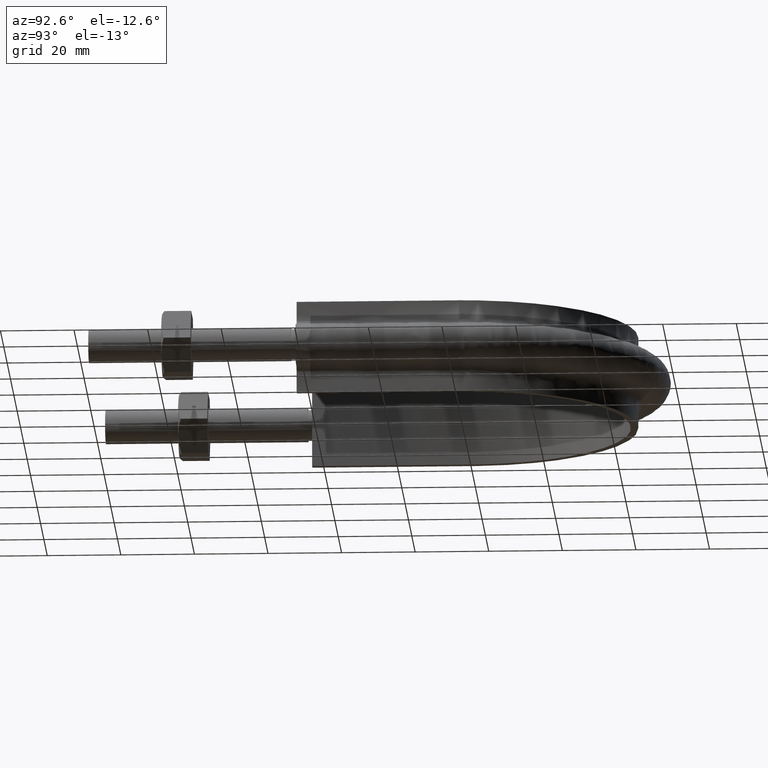
[diagram: clean part render]
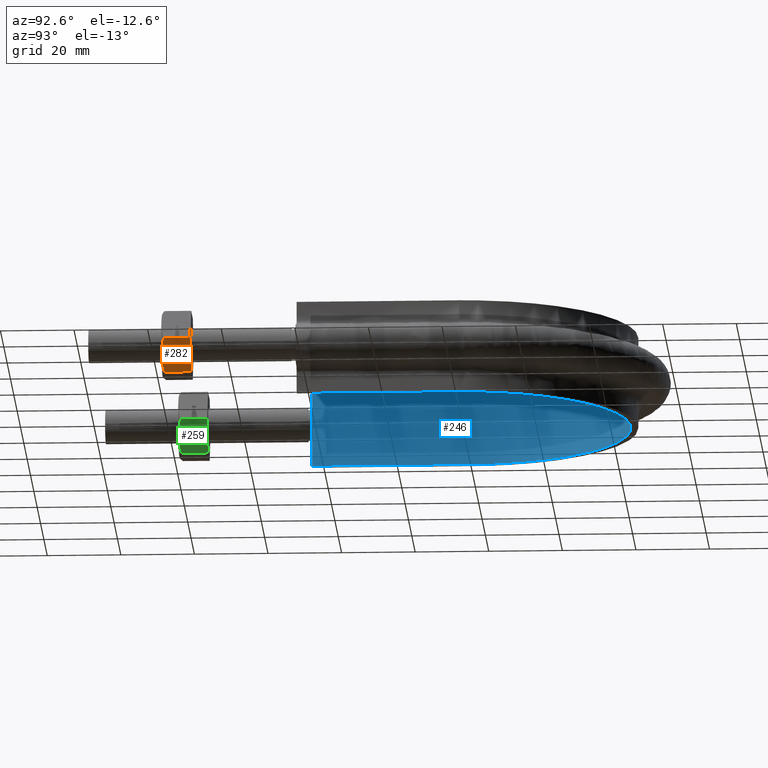
[diagram: same view with three faces highlighted in distinct colors, each labeled with its STEP entity id]
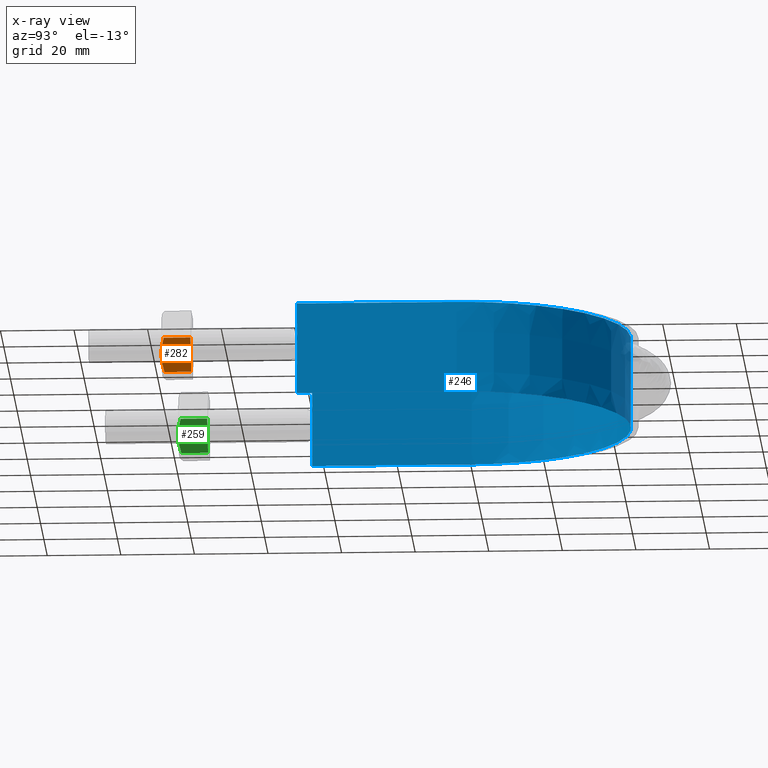
[diagram: x-ray of the same camera — body ghosted, the three highlighted faces saturated]
A machine part, auxiliary view with three faces highlighted in distinct colors.
The next image is the same camera in x-ray (body ghosted, the three faces saturated) — at least one of them is partly hidden behind the body in this view.
Their STEP definitions:

[orange] entity #282 — the highlighted planar face has unit normal (-0.866, 0, 0.5).
#282 = ADVANCED_FACE( '', ( #439 ), #440, .F. );
#439 = FACE_OUTER_BOUND( '', #1425, .T. );
#440 = PLANE( '', #1426 );
#1425 = EDGE_LOOP( '', ( #1896, #1897, #1898, #1899, #1900 ) );
#1426 = AXIS2_PLACEMENT_3D( '', #1901, #1902, #1903 );
#1896 = ORIENTED_EDGE( '', *, *, #2094, .F. );
#1897 = ORIENTED_EDGE( '', *, *, #2125, .F. );
#1898 = ORIENTED_EDGE( '', *, *, #2130, .F. );
#1899 = ORIENTED_EDGE( '', *, *, #2114, .F. );
#1900 = ORIENTED_EDGE( '', *, *, #2131, .F. );
#1901 = CARTESIAN_POINT( '', ( 60.3149545762237, 28.0000000000000, 2.44921270764476E-016 ) );
#1902 = DIRECTION( '', ( -0.866025403784439, 1.81492883563643E-016, 0.500000000000000 ) );
#1903 = DIRECTION( '', ( 2.09569930362941E-016, 1.00000000000000, -1.23259516440783E-032 ) );
#2094 = EDGE_CURVE( '', #2312, #2308, #2314, .T. );
#2114 = EDGE_CURVE( '', #2350, #2352, #2353, .T. );
#2125 = EDGE_CURVE( '', #2367, #2312, #2369, .T. );
#2130 = EDGE_CURVE( '', #2352, #2367, #2378, .T. );
#2131 = EDGE_CURVE( '', #2308, #2350, #2379, .F. );
#2308 = VERTEX_POINT( '', #2890 );
#2312 = VERTEX_POINT( '', #2899 );
#2314 = B_SPLINE_CURVE_WITH_KNOTS( '', 3, ( #2901, #2902, #2903, #2904, #2905, #2906 ), .UNSPECIFIED., .F., .F., ( 4, 2, 4 ), ( 1.51478215358021E-017, 0.00246745482903602, 0.00493490965807203 ), .UNSPECIFIED. );
#2350 = VERTEX_POINT( '', #2964 );
#2352 = VERTEX_POINT( '', #2966 );
#2353 = LINE( '', #2967, #2968 );
#2367 = VERTEX_POINT( '', #2987 );
#2369 = B_SPLINE_CURVE_WITH_KNOTS( '', 3, ( #2989, #2990, #2991, #2992, #2993, #2994 ), .UNSPECIFIED., .F., .F., ( 4, 2, 4 ), ( 4.25272687625380E-017, 0.00246745482903608, 0.00493490965807212 ), .UNSPECIFIED. );
#2378 = LINE( '', #3013, #3014 );
#2379 = LINE( '', #3015, #3016 );
#2890 = CARTESIAN_POINT( '', ( 60.2999656118192, 20.7505553499465, -0.0259616479014452 ) );
#2899 = CARTESIAN_POINT( '', ( 57.8612159321678, 20.0000000000000, -4.24999999999999 ) );
#2901 = CARTESIAN_POINT( '', ( 57.8612159321678, 20.0000000000000, -4.24999999999999 ) );
#2902 = CARTESIAN_POINT( '', ( 58.2772989072631, 20.0000000000000, -3.52932314697043 ) );
#2903 = CARTESIAN_POINT( '', ( 58.6878690560106, 20.0716504305291, -2.81819478926870 ) );
#2904 = CARTESIAN_POINT( '', ( 59.4999375199992, 20.3328582843707, -1.41165095041606 ) );
#2905 = CARTESIAN_POINT( '', ( 59.9015017855064, 20.5215585493657, -0.716121240053489 ) );
#2906 = CARTESIAN_POINT( '', ( 60.2999656118192, 20.7505553499465, -0.0259616479013997 ) );
#2964 = CARTESIAN_POINT( '', ( 60.2999656118192, 28.0000000000000, -0.0259616479014848 ) );
#2966 = CARTESIAN_POINT( '', ( 55.4224662525164, 28.0000000000000, -8.47403835209856 ) );
#2967 = CARTESIAN_POINT( '', ( 60.3112159321678, 28.0000000000000, -0.00647552145627284 ) );
#2968 = VECTOR( '', #3243, 1000.00000000000 );
#2987 = CARTESIAN_POINT( '', ( 55.4224662525164, 20.7505553499465, -8.47403835209859 ) );
#2989 = CARTESIAN_POINT( '', ( 55.4224662525163, 20.7505553499465, -8.47403835209863 ) );
#2990 = CARTESIAN_POINT( '', ( 55.8209300788292, 20.5215585493657, -7.78387875994653 ) );
#2991 = CARTESIAN_POINT( '', ( 56.2224943443364, 20.3328582843707, -7.08834904958396 ) );
#2992 = CARTESIAN_POINT( '', ( 57.0345628083250, 20.0716504305291, -5.68180521073130 ) );
#2993 = CARTESIAN_POINT( '', ( 57.4451329570724, 20.0000000000000, -4.97067685302957 ) );
#2994 = CARTESIAN_POINT( '', ( 57.8612159321678, 20.0000000000000, -4.24999999999999 ) );
#3013 = CARTESIAN_POINT( '', ( 55.4224662525164, 28.0000000000000, -8.47403835209856 ) );
#3014 = VECTOR( '', #3270, 1000.00000000000 );
#3015 = CARTESIAN_POINT( '', ( 60.2999656118192, 28.0000000000000, -0.0259616479014874 ) );
#3016 = VECTOR( '', #3271, 1000.00000000000 );
#3243 = DIRECTION( '', ( -0.500000000000000, 1.75487645984538E-016, -0.866025403784439 ) );
#3270 = DIRECTION( '', ( -2.44921270764475E-016, -1.00000000000000, -6.12303176911189E-017 ) );
#3271 = DIRECTION( '', ( -2.44921270764475E-016, -1.00000000000000, -6.12303176911189E-017 ) );

[blue] entity #246 — the highlighted face is a SurfaceOfExtrusion surface.
#246 = ADVANCED_FACE( '', ( #359 ), #360, .T. );
#359 = FACE_OUTER_BOUND( '', #1185, .T. );
#360 = SURFACE_OF_LINEAR_EXTRUSION( '', #1186, #1187 );
#1185 = EDGE_LOOP( '', ( #1615, #1616, #1617, #1618 ) );
#1186 = B_SPLINE_CURVE_WITH_KNOTS( '', 3, ( #1619, #1620, #1621, #1622, #1623, #1624, #1625, #1626, #1627, #1628, #1629, #1630, #1631, #1632, #1633, #1634 ), .UNSPECIFIED., .F., .F., ( 4, 3, 1, 1, 1, 1, 1, 1, 3, 4 ), ( -8.93133047210300, -8.00000000000000, -7.00000000000000, -6.00000000000000, -5.00000000000000, -4.00000000000000, -3.00000000000000, -2.00000000000000, -1.00000000000000, -0.0686695278969956 ), .UNSPECIFIED. );
#1187 = VECTOR( '', #1635, 1000.00000000000 );
#1615 = ORIENTED_EDGE( '', *, *, #2025, .T. );
#1616 = ORIENTED_EDGE( '', *, *, #2038, .T. );
#1617 = ORIENTED_EDGE( '', *, *, #2033, .F. );
#1618 = ORIENTED_EDGE( '', *, *, #2030, .T. );
#1619 = CARTESIAN_POINT( '', ( 45.3000000000000, 56.3000000000000, 12.5000100000910 ) );
#1620 = CARTESIAN_POINT( '', ( 45.3000000000000, 70.7666666666667, 12.5000100000910 ) );
#1621 = CARTESIAN_POINT( '', ( 45.3000000000000, 85.2333333333333, 12.5000100000910 ) );
#1622 = CARTESIAN_POINT( '', ( 45.3000000000000, 99.7000000000000, 12.5000100000910 ) );
#1623 = CARTESIAN_POINT( '', ( 45.3000000000000, 106.461794206864, 12.5000100000910 ) );
#1624 = CARTESIAN_POINT( '', ( 42.2071641315033, 120.032157601825, 12.5000100000910 ) );
#1625 = CARTESIAN_POINT( '', ( 29.2082638356160, 136.324357375469, 12.5000100000910 ) );
#1626 = CARTESIAN_POINT( '', ( 10.4243086712368, 145.372209831110, 12.5000100000910 ) );
#1627 = CARTESIAN_POINT( '', ( -10.4243086712368, 145.372209831110, 12.5000100000910 ) );
#1628 = CARTESIAN_POINT( '', ( -29.2082638356159, 136.324357375469, 12.5000100000910 ) );
#1629 = CARTESIAN_POINT( '', ( -42.2071641315033, 120.032157601825, 12.5000100000910 ) );
#1630 = CARTESIAN_POINT( '', ( -45.3000000000000, 106.461794206864, 12.5000100000910 ) );
#1631 = CARTESIAN_POINT( '', ( -45.3000000000000, 99.7000000000000, 12.5000100000910 ) );
#1632 = CARTESIAN_POINT( '', ( -45.3000000000000, 85.2333333333333, 12.5000100000910 ) );
#1633 = CARTESIAN_POINT( '', ( -45.3000000000000, 70.7666666666667, 12.5000100000910 ) );
#1634 = CARTESIAN_POINT( '', ( -45.3000000000000, 56.3000000000000, 12.5000100000910 ) );
#1635 = DIRECTION( '', ( 0.000000000000000, 0.000000000000000, -1.00000000000000 ) );
#2025 = EDGE_CURVE( '', #2197, #2198, #2199, .T. );
#2030 = EDGE_CURVE( '', #2207, #2197, #2208, .T. );
#2033 = EDGE_CURVE( '', #2207, #2212, #2213, .T. );
#2038 = EDGE_CURVE( '', #2198, #2212, #2220, .F. );
#2197 = VERTEX_POINT( '', #2489 );
#2198 = VERTEX_POINT( '', #2490 );
#2199 = LINE( '', #2491, #2492 );
#2207 = VERTEX_POINT( '', #2541 );
#2208 = B_SPLINE_CURVE_WITH_KNOTS( '', 3, ( #2542, #2543, #2544, #2545, #2546, #2547, #2548, #2549, #2550, #2551, #2552, #2553, #2554, #2555, #2556, #2557, #2558, #2559, #2560, #2561, #2562, #2563, #2564, #2565, #2566, #2567, #2568, #2569, #2570, #2571, #2572, #2573, #2574, #2575, #2576, #2577, #2578, #2579, #2580, #2581, #2582, #2583, #2584, #2585, #2586, #2587, #2588, #2589, #2590, #2591, #2592, #2593, #2594, #2595, #2596, #2597, #2598, #2599, #2600, #2601, #2602, #2603, #2604, #2605, #2606, #2607, #2608, #2609, #2610, #2611, #2612, #2613, #2614, #2615, #2616, #2617, #2618, #2619, #2620, #2621, #2622, #2623, #2624, #2625 ), .UNSPECIFIED., .F., .F., ( 4, 1, 2, 2, 2, 2, 2, 2, 2, 2, 2, 2, 2, 2, 2, 2, 2, 2, 2, 2, 2, 2, 2, 2, 2, 2, 2, 2, 2, 2, 2, 2, 2, 2, 2, 2, 2, 2, 2, 2, 2, 1, 4 ), ( 6.93889390390723E-018, 0.0287543779946533, 0.0431315669919799, 0.0440301413043129, 0.0449287156166458, 0.0467258642413117, 0.0503201614906435, 0.0575087559893071, 0.0611030532386389, 0.0629002018633049, 0.0646973504879708, 0.0718859449866344, 0.0754802422359662, 0.0790745394852980, 0.0862631339839615, 0.0898574312332932, 0.0916545798579591, 0.0934517284826250, 0.100640322981289, 0.107828917479952, 0.111423214729284, 0.115017511978616, 0.122206106477279, 0.124003255101945, 0.125800403726611, 0.129394700975943, 0.136583295474606, 0.138380444099272, 0.140177592723938, 0.143771889973270, 0.150960484471934, 0.154554781721266, 0.158149078970598, 0.165337673469261, 0.168931970718593, 0.170729119343259, 0.172526267967925, 0.179714862466589, 0.183309159715921, 0.185106308340587, 0.186903456965253, 0.201280645962580, 0.230035023957236 ), .UNSPECIFIED. );
#2212 = VERTEX_POINT( '', #2645 );
#2213 = LINE( '', #2646, #2647 );
#2220 = B_SPLINE_CURVE_WITH_KNOTS( '', 3, ( #2709, #2710, #2711, #2712, #2713, #2714, #2715, #2716, #2717, #2718, #2719, #2720, #2721, #2722, #2723, #2724 ), .UNSPECIFIED., .F., .F., ( 4, 3, 1, 1, 1, 1, 1, 1, 3, 4 ), ( -8.93133047210300, -8.00000000000000, -7.00000000000000, -6.00000000000000, -5.00000000000000, -4.00000000000000, -3.00000000000000, -2.00000000000000, -1.00000000000000, -0.0686695278969956 ), .UNSPECIFIED. );
#2489 = CARTESIAN_POINT( '', ( -45.3000000000000, 56.3000000000000, 12.5000000000000 ) );
#2490 = CARTESIAN_POINT( '', ( -45.3000000000000, 56.3000000000000, -12.5000000000000 ) );
#2491 = CARTESIAN_POINT( '', ( -45.3000000000000, 56.3000000000000, 12.5000100000910 ) );
#2492 = VECTOR( '', #3113, 1000.00000000000 );
#2541 = CARTESIAN_POINT( '', ( 45.3000000000000, 56.3000000000000, 12.5000000000000 ) );
#2542 = CARTESIAN_POINT( '', ( 45.3000000000000, 56.3000000000000, 12.5000000000000 ) );
#2543 = CARTESIAN_POINT( '', ( 45.3000000000000, 65.8848205646283, 12.5000000000000 ) );
#2544 = CARTESIAN_POINT( '', ( 45.3000000000000, 80.2620514115707, 12.5000000000000 ) );
#2545 = CARTESIAN_POINT( '', ( 45.3000000000000, 94.6392822585131, 12.5000000000000 ) );
#2546 = CARTESIAN_POINT( '', ( 45.3000000000000, 99.7312181834718, 12.5000000000000 ) );
#2547 = CARTESIAN_POINT( '', ( 45.2997760120250, 100.030743285675, 12.5000000000000 ) );
#2548 = CARTESIAN_POINT( '', ( 45.2912777717044, 100.629774066281, 12.5000000000000 ) );
#2549 = CARTESIAN_POINT( '', ( 45.2840050595566, 100.929282161215, 12.5000000000000 ) );
#2550 = CARTESIAN_POINT( '', ( 45.2531480099003, 101.827784636791, 12.5000000000000 ) );
#2551 = CARTESIAN_POINT( '', ( 45.2204957104833, 102.427200024520, 12.5000000000000 ) );
#2552 = CARTESIAN_POINT( '', ( 45.0866957945141, 104.222494949273, 12.5000000000000 ) );
#2553 = CARTESIAN_POINT( '', ( 44.9504291017170, 105.407906322015, 12.5000000000000 ) );
#2554 = CARTESIAN_POINT( '', ( 44.4061177465217, 108.931168904230, 12.5000000000000 ) );
#2555 = CARTESIAN_POINT( '', ( 43.8636822485658, 111.236321194623, 12.5000000000000 ) );
#2556 = CARTESIAN_POINT( '', ( 42.7815683609983, 114.628729902663, 12.5000000000000 ) );
#2557 = CARTESIAN_POINT( '', ( 42.3758385758422, 115.748577639201, 12.5000000000000 ) );
#2558 = CARTESIAN_POINT( '', ( 41.6971261299260, 117.411288741198, 12.5000000000000 ) );
#2559 = CARTESIAN_POINT( '', ( 41.4587485176160, 117.963522487295, 12.5000000000000 ) );
#2560 = CARTESIAN_POINT( '', ( 40.9623939009448, 119.052686028662, 12.5000000000000 ) );
#2561 = CARTESIAN_POINT( '', ( 40.7040140940422, 119.590633634307, 12.5000000000000 ) );
#2562 = CARTESIAN_POINT( '', ( 39.3618284958927, 122.247672872113, 12.5000000000000 ) );
#2563 = CARTESIAN_POINT( '', ( 38.1287732829049, 124.269715209024, 12.5000000000000 ) );
#2564 = CARTESIAN_POINT( '', ( 36.0483927303405, 127.152702706861, 12.5000000000000 ) );
#2565 = CARTESIAN_POINT( '', ( 35.3162279376428, 128.088530904417, 12.5000000000000 ) );
#2566 = CARTESIAN_POINT( '', ( 33.7729613787723, 129.908858607226, 12.5000000000000 ) );
#2567 = CARTESIAN_POINT( '', ( 32.9584983694079, 130.796352407073, 12.5000000000000 ) );
#2568 = CARTESIAN_POINT( '', ( 30.4343658146005, 133.337344556213, 12.5000000000000 ) );
#2569 = CARTESIAN_POINT( '', ( 28.6360692622386, 134.881493975360, 12.5000000000000 ) );
#2570 = CARTESIAN_POINT( '', ( 25.7668653719942, 136.974964438366, 12.5000000000000 ) );
#2571 = CARTESIAN_POINT( '', ( 24.7819445161321, 137.635801019642, 12.5000000000000 ) );
#2572 = CARTESIAN_POINT( '', ( 23.2616146962020, 138.571356100425, 12.5000000000000 ) );
#2573 = CARTESIAN_POINT( '', ( 22.7476691870376, 138.873910471946, 12.5000000000000 ) );
#2574 = CARTESIAN_POINT( '', ( 21.7052773821733, 139.460213200769, 12.5000000000000 ) );
#2575 = CARTESIAN_POINT( '', ( 21.1756556167052, 139.744537298346, 12.5000000000000 ) );
#2576 = CARTESIAN_POINT( '', ( 18.5103111801554, 141.108501344270, 12.5000000000000 ) );
#2577 = CARTESIAN_POINT( '', ( 16.3185331092019, 142.020394560135, 12.5000000000000 ) );
#2578 = CARTESIAN_POINT( '', ( 11.8189661583873, 143.494646423883, 12.5000000000000 ) );
#2579 = CARTESIAN_POINT( '', ( 9.51076198777612, 144.055753822213, 12.5000000000000 ) );
#2580 = CARTESIAN_POINT( '', ( 5.95662532797854, 144.620734661634, 12.5000000000000 ) );
#2581 = CARTESIAN_POINT( '', ( 4.76788785050948, 144.761147485507, 12.5000000000000 ) );
#2582 = CARTESIAN_POINT( '', ( 2.39647070391243, 144.947851083060, 12.5000000000000 ) );
#2583 = CARTESIAN_POINT( '', ( 1.21153117527852, 144.994499013257, 12.5000000000000 ) );
#2584 = CARTESIAN_POINT( '', ( -2.34101805316259, 144.996625356462, 12.5000000000000 ) );
#2585 = CARTESIAN_POINT( '', ( -4.70637779815008, 144.815464639074, 12.5000000000000 ) );
#2586 = CARTESIAN_POINT( '', ( -7.65915858277231, 144.351020241084, 12.5000000000000 ) );
#2587 = CARTESIAN_POINT( '', ( -8.25083455194666, 144.245862246466, 12.5000000000000 ) );
#2588 = CARTESIAN_POINT( '', ( -9.42653190172397, 144.012409776832, 12.5000000000000 ) );
#2589 = CARTESIAN_POINT( '', ( -10.0101476162836, 143.884250803394, 12.5000000000000 ) );
#2590 = CARTESIAN_POINT( '', ( -11.7484468334343, 143.465883377835, 12.5000000000000 ) );
#2591 = CARTESIAN_POINT( '', ( -12.8906527223969, 143.141974327520, 12.5000000000000 ) );
#2592 = CARTESIAN_POINT( '', ( -16.2689101217008, 142.039631660257, 12.5000000000000 ) );
#2593 = CARTESIAN_POINT( '', ( -18.4569925447982, 141.131639060066, 12.5000000000000 ) );
#2594 = CARTESIAN_POINT( '', ( -21.1113012403399, 139.778432115202, 12.5000000000000 ) );
#2595 = CARTESIAN_POINT( '', ( -21.6380918925234, 139.496795189040, 12.5000000000000 ) );
#2596 = CARTESIAN_POINT( '', ( -22.6833837807201, 138.911132577781, 12.5000000000000 ) );
#2597 = CARTESIAN_POINT( '', ( -23.2017061819432, 138.607128404409, 12.5000000000000 ) );
#2598 = CARTESIAN_POINT( '', ( -24.7303471350012, 137.669564342871, 12.5000000000000 ) );
#2599 = CARTESIAN_POINT( '', ( -25.7191011998732, 137.007938274698, 12.5000000000000 ) );
#2600 = CARTESIAN_POINT( '', ( -28.5955069273408, 134.914712609781, 12.5000000000000 ) );
#2601 = CARTESIAN_POINT( '', ( -30.3928386158800, 133.374206663575, 12.5000000000000 ) );
#2602 = CARTESIAN_POINT( '', ( -32.9098802473356, 130.847665641424, 12.5000000000000 ) );
#2603 = CARTESIAN_POINT( '', ( -33.7201063858692, 129.968144324298, 12.5000000000000 ) );
#2604 = CARTESIAN_POINT( '', ( -35.2745676507393, 128.140548074671, 12.5000000000000 ) );
#2605 = CARTESIAN_POINT( '', ( -36.0108033379542, 127.202093103808, 12.5000000000000 ) );
#2606 = CARTESIAN_POINT( '', ( -38.0999731742671, 124.314831254988, 12.5000000000000 ) );
#2607 = CARTESIAN_POINT( '', ( -39.3343184899538, 122.294697861215, 12.5000000000000 ) );
#2608 = CARTESIAN_POINT( '', ( -40.9440306770637, 119.119061107137, 12.5000000000000 ) );
#2609 = CARTESIAN_POINT( '', ( -41.4398476877741, 118.036003764877, 12.5000000000000 ) );
#2610 = CARTESIAN_POINT( '', ( -42.1215319712500, 116.374102391935, 12.5000000000000 ) );
#2611 = CARTESIAN_POINT( '', ( -42.3385970417913, 115.813283805220, 12.5000000000000 ) );
#2612 = CARTESIAN_POINT( '', ( -42.7483267135284, 114.689073533850, 12.5000000000000 ) );
#2613 = CARTESIAN_POINT( '', ( -42.9414928116360, 114.124536114339, 12.5000000000000 ) );
#2614 = CARTESIAN_POINT( '', ( -43.8499727665167, 111.289925270555, 12.5000000000000 ) );
#2615 = CARTESIAN_POINT( '', ( -44.3947073189255, 108.984386713932, 12.5000000000000 ) );
#2616 = CARTESIAN_POINT( '', ( -44.9423619636432, 105.470058132087, 12.5000000000000 ) );
#2617 = CARTESIAN_POINT( '', ( -45.0797192826280, 104.289218942135, 12.5000000000000 ) );
#2618 = CARTESIAN_POINT( '', ( -45.2157289936545, 102.503401000383, 12.5000000000000 ) );
#2619 = CARTESIAN_POINT( '', ( -45.2493799141445, 101.905563911382, 12.5000000000000 ) );
#2620 = CARTESIAN_POINT( '', ( -45.2926573150340, 100.705446197624, 12.5000000000000 ) );
#2621 = CARTESIAN_POINT( '', ( -45.3000000000000, 100.105377557368, 12.5000000000000 ) );
#2622 = CARTESIAN_POINT( '', ( -45.3000000000000, 94.7047145708432, 12.5000000000000 ) );
#2623 = CARTESIAN_POINT( '', ( -45.3000000000000, 80.3029466067771, 12.5000000000000 ) );
#2624 = CARTESIAN_POINT( '', ( -45.3000000000000, 65.9011786427109, 12.5000000000000 ) );
#2625 = CARTESIAN_POINT( '', ( -45.3000000000000, 56.3000000000000, 12.5000000000000 ) );
#2645 = CARTESIAN_POINT( '', ( 45.3000000000000, 56.3000000000000, -12.5000000000000 ) );
#2646 = CARTESIAN_POINT( '', ( 45.3000000000000, 56.3000000000000, 12.5000100000910 ) );
#2647 = VECTOR( '', #3117, 1000.00000000000 );
#2709 = CARTESIAN_POINT( '', ( 45.3000000000000, 56.3000000000000, -12.5000000000000 ) );
#2710 = CARTESIAN_POINT( '', ( 45.3000000000000, 70.7666666666667, -12.5000000000000 ) );
#2711 = CARTESIAN_POINT( '', ( 45.3000000000000, 85.2333333333333, -12.5000000000000 ) );
#2712 = CARTESIAN_POINT( '', ( 45.3000000000000, 99.7000000000000, -12.5000000000000 ) );
#2713 = CARTESIAN_POINT( '', ( 45.3000000000000, 106.461794206864, -12.5000000000000 ) );
#2714 = CARTESIAN_POINT( '', ( 42.2071641315033, 120.032157601825, -12.5000000000000 ) );
#2715 = CARTESIAN_POINT( '', ( 29.2082638356160, 136.324357375469, -12.5000000000000 ) );
#2716 = CARTESIAN_POINT( '', ( 10.4243086712368, 145.372209831110, -12.5000000000000 ) );
#2717 = CARTESIAN_POINT( '', ( -10.4243086712368, 145.372209831110, -12.5000000000000 ) );
#2718 = CARTESIAN_POINT( '', ( -29.2082638356159, 136.324357375469, -12.5000000000000 ) );
#2719 = CARTESIAN_POINT( '', ( -42.2071641315033, 120.032157601825, -12.5000000000000 ) );
#2720 = CARTESIAN_POINT( '', ( -45.3000000000000, 106.461794206864, -12.5000000000000 ) );
#2721 = CARTESIAN_POINT( '', ( -45.3000000000000, 99.7000000000000, -12.5000000000000 ) );
#2722 = CARTESIAN_POINT( '', ( -45.3000000000000, 85.2333333333333, -12.5000000000000 ) );
#2723 = CARTESIAN_POINT( '', ( -45.3000000000000, 70.7666666666667, -12.5000000000000 ) );
#2724 = CARTESIAN_POINT( '', ( -45.3000000000000, 56.3000000000000, -12.5000000000000 ) );
#3113 = DIRECTION( '', ( 0.000000000000000, 0.000000000000000, -1.00000000000000 ) );
#3117 = DIRECTION( '', ( 0.000000000000000, 0.000000000000000, -1.00000000000000 ) );

[green] entity #259 — the highlighted planar face has unit normal (-0.866, 0, 0.5).
#259 = ADVANCED_FACE( '', ( #388 ), #389, .F. );
#388 = FACE_OUTER_BOUND( '', #1374, .T. );
#389 = PLANE( '', #1375 );
#1374 = EDGE_LOOP( '', ( #1723, #1724, #1725, #1726, #1727 ) );
#1375 = AXIS2_PLACEMENT_3D( '', #1728, #1729, #1730 );
#1723 = ORIENTED_EDGE( '', *, *, #2042, .F. );
#1724 = ORIENTED_EDGE( '', *, *, #2071, .F. );
#1725 = ORIENTED_EDGE( '', *, *, #2046, .F. );
#1726 = ORIENTED_EDGE( '', *, *, #2061, .F. );
#1727 = ORIENTED_EDGE( '', *, *, #2076, .F. );
#1728 = CARTESIAN_POINT( '', ( -40.6850454237764, 28.0000000000000, 2.44921270764476E-016 ) );
#1729 = DIRECTION( '', ( -0.866025403784439, 1.81492883563643E-016, 0.500000000000000 ) );
#1730 = DIRECTION( '', ( 2.09569930362941E-016, 1.00000000000000, -1.23259516440783E-032 ) );
#2042 = EDGE_CURVE( '', #2226, #2222, #2228, .T. );
#2046 = EDGE_CURVE( '', #2234, #2229, #2236, .T. );
#2061 = EDGE_CURVE( '', #2261, #2234, #2263, .T. );
#2071 = EDGE_CURVE( '', #2229, #2226, #2279, .T. );
#2076 = EDGE_CURVE( '', #2222, #2261, #2288, .F. );
#2222 = VERTEX_POINT( '', #2726 );
#2226 = VERTEX_POINT( '', #2735 );
#2228 = B_SPLINE_CURVE_WITH_KNOTS( '', 3, ( #2737, #2738, #2739, #2740, #2741, #2742 ), .UNSPECIFIED., .F., .F., ( 4, 2, 4 ), ( 8.67361737988404E-019, 0.00246745482903608, 0.00493490965807215 ), .UNSPECIFIED. );
#2229 = VERTEX_POINT( '', #2743 );
#2234 = VERTEX_POINT( '', #2749 );
#2236 = LINE( '', #2751, #2752 );
#2261 = VERTEX_POINT( '', #2796 );
#2263 = LINE( '', #2798, #2799 );
#2279 = B_SPLINE_CURVE_WITH_KNOTS( '', 3, ( #2820, #2821, #2822, #2823, #2824, #2825 ), .UNSPECIFIED., .F., .F., ( 4, 2, 4 ), ( 1.90029435765254E-017, 0.00246745482903605, 0.00493490965807209 ), .UNSPECIFIED. );
#2288 = LINE( '', #2844, #2845 );
#2726 = CARTESIAN_POINT( '', ( -40.7000343881808, 20.7505553499465, -0.0259616479013369 ) );
#2735 = CARTESIAN_POINT( '', ( -43.1387840678323, 20.0000000000000, -4.25000000000000 ) );
#2737 = CARTESIAN_POINT( '', ( -43.1387840678323, 20.0000000000000, -4.24999999999999 ) );
#2738 = CARTESIAN_POINT( '', ( -42.7227010927369, 20.0000000000000, -3.52932314697041 ) );
#2739 = CARTESIAN_POINT( '', ( -42.3121309439895, 20.0716504305290, -2.81819478926868 ) );
#2740 = CARTESIAN_POINT( '', ( -41.5000624800009, 20.3328582843706, -1.41165095041600 ) );
#2741 = CARTESIAN_POINT( '', ( -41.0984982144937, 20.5215585493656, -0.716121240053459 ) );
#2742 = CARTESIAN_POINT( '', ( -40.7000343881809, 20.7505553499465, -0.0259616479013498 ) );
#2743 = CARTESIAN_POINT( '', ( -45.5775337474837, 20.7505553499465, -8.47403835209862 ) );
#2749 = CARTESIAN_POINT( '', ( -45.5775337474838, 28.0000000000000, -8.47403835209864 ) );
#2751 = CARTESIAN_POINT( '', ( -45.5775337474838, 28.0000000000000, -8.47403835209864 ) );
#2752 = VECTOR( '', #3132, 1000.00000000000 );
#2796 = CARTESIAN_POINT( '', ( -40.7000343881808, 28.0000000000000, -0.0259616479013226 ) );
#2798 = CARTESIAN_POINT( '', ( -40.6887840678323, 28.0000000000000, -0.00647552145622947 ) );
#2799 = VECTOR( '', #3158, 1000.00000000000 );
#2820 = CARTESIAN_POINT( '', ( -45.5775337474837, 20.7505553499465, -8.47403835209860 ) );
#2821 = CARTESIAN_POINT( '', ( -45.1790699211709, 20.5215585493656, -7.78387875994650 ) );
#2822 = CARTESIAN_POINT( '', ( -44.7775056556637, 20.3328582843706, -7.08834904958395 ) );
#2823 = CARTESIAN_POINT( '', ( -43.9654371916751, 20.0716504305290, -5.68180521073129 ) );
#2824 = CARTESIAN_POINT( '', ( -43.5548670429277, 20.0000000000000, -4.97067685302957 ) );
#2825 = CARTESIAN_POINT( '', ( -43.1387840678323, 20.0000000000000, -4.25000000000000 ) );
#2844 = CARTESIAN_POINT( '', ( -40.7000343881808, 28.0000000000000, -0.0259616479013286 ) );
#2845 = VECTOR( '', #3182, 1000.00000000000 );
#3132 = DIRECTION( '', ( -2.44921270764475E-016, -1.00000000000000, -6.12303176911189E-017 ) );
#3158 = DIRECTION( '', ( -0.500000000000000, 1.75487645984538E-016, -0.866025403784439 ) );
#3182 = DIRECTION( '', ( -2.44921270764475E-016, -1.00000000000000, -6.12303176911189E-017 ) );